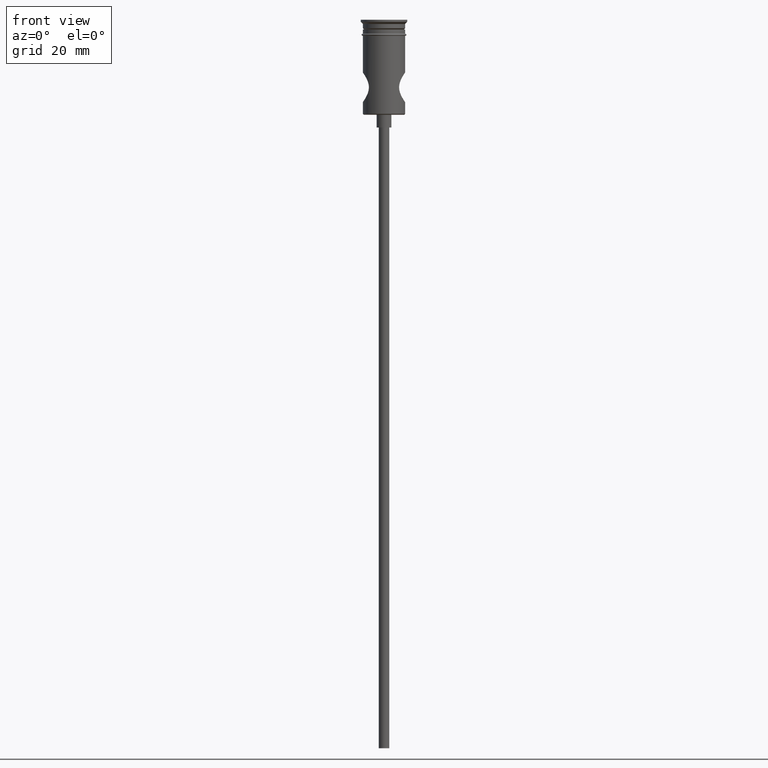
[diagram: clean part render]
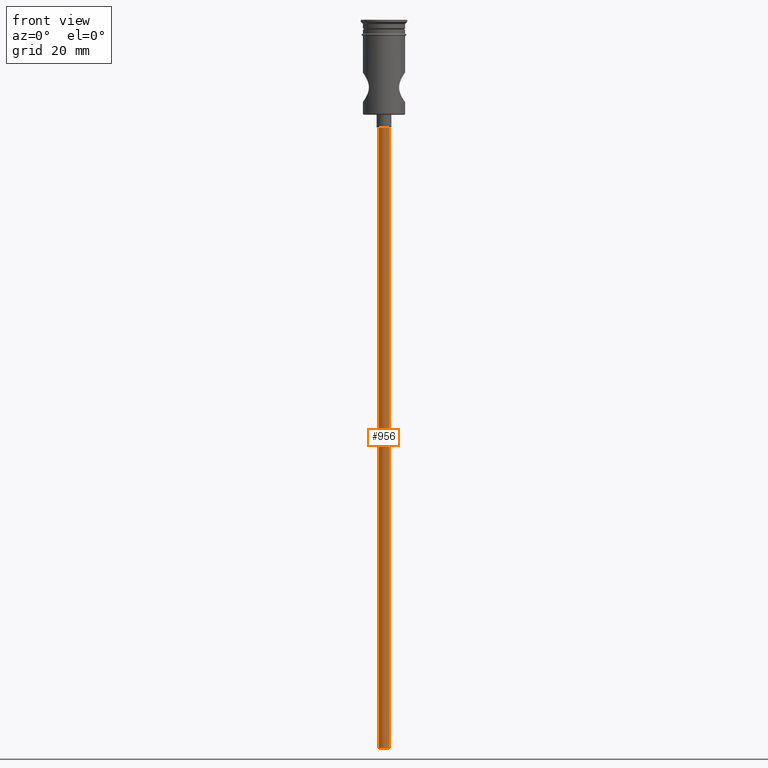
[diagram: same view with one face highlighted and labeled with its STEP entity id]
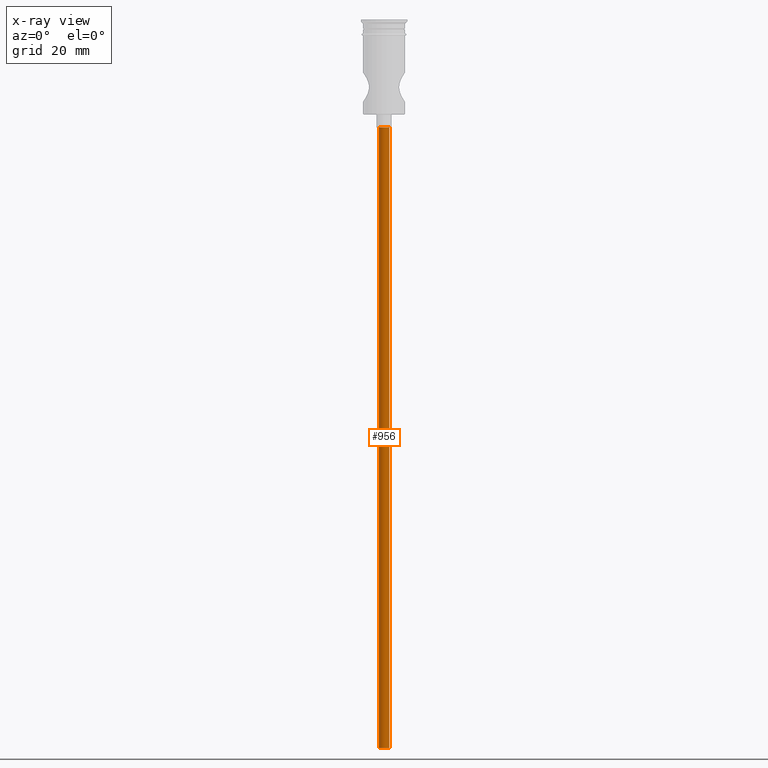
[diagram: x-ray of the same camera — body ghosted, the highlighted face saturated]
A machine part, front view. The second image highlights one B-rep face of the part: STEP entity #956.
The next image is the same camera in x-ray: the body ghosted, the highlighted face saturated — about 0% of this face is hidden behind the body in this view.
In plain terms, the highlighted cylindrical surface (edge-blend (fillet) strip) has radius 1.25 mm, axis along (-0, -0, 1).
Its self-contained STEP definition (entity closure, byte-faithful):
#17 = CARTESIAN_POINT ( 'NONE',  ( -1.250000000000000000, 1.530808498934191571E-16, -25.50000000000000000 ) ) ;
#44 = VERTEX_POINT ( 'NONE', #17 ) ;
#79 = VECTOR ( 'NONE', #1196, 1000.000000000000000 ) ;
#122 = FACE_OUTER_BOUND ( 'NONE', #423, .T. ) ;
#185 = ORIENTED_EDGE ( 'NONE', *, *, #644, .F. ) ;
#235 = LINE ( 'NONE', #337, #79 ) ;
#239 = VERTEX_POINT ( 'NONE', #1138 ) ;
#277 = DIRECTION ( 'NONE',  ( 0.000000000000000000, 0.000000000000000000, -1.000000000000000000 ) ) ;
#330 = CYLINDRICAL_SURFACE ( 'NONE', #584, 1.250000000000000000 ) ;
#337 = CARTESIAN_POINT ( 'NONE',  ( -1.250000000000000000, 1.530808498934191571E-16, -172.5000000000000000 ) ) ;
#413 = CARTESIAN_POINT ( 'NONE',  ( 1.250000000000000000, 0.000000000000000000, -172.5000000000000000 ) ) ;
#423 = EDGE_LOOP ( 'NONE', ( #1045, #185, #682, #430 ) ) ;
#427 = VERTEX_POINT ( 'NONE', #731 ) ;
#430 = ORIENTED_EDGE ( 'NONE', *, *, #1020, .T. ) ;
#452 = CIRCLE ( 'NONE', #626, 1.250000000000000000 ) ;
#524 = LINE ( 'NONE', #413, #1271 ) ;
#583 = VERTEX_POINT ( 'NONE', #912 ) ;
#584 = AXIS2_PLACEMENT_3D ( 'NONE', #1182, #1044, #1028 ) ;
#626 = AXIS2_PLACEMENT_3D ( 'NONE', #1035, #277, #703 ) ;
#644 = EDGE_CURVE ( 'NONE', #427, #583, #452, .T. ) ;
#680 = EDGE_CURVE ( 'NONE', #427, #239, #524, .T. ) ;
#682 = ORIENTED_EDGE ( 'NONE', *, *, #680, .T. ) ;
#703 = DIRECTION ( 'NONE',  ( -1.000000000000000000, 0.000000000000000000, 0.000000000000000000 ) ) ;
#731 = CARTESIAN_POINT ( 'NONE',  ( 1.250000000000000000, 0.000000000000000000, -172.5000000000000000 ) ) ;
#736 = DIRECTION ( 'NONE',  ( -0.000000000000000000, -0.000000000000000000, 1.000000000000000000 ) ) ;
#899 = EDGE_CURVE ( 'NONE', #583, #44, #235, .T. ) ;
#912 = CARTESIAN_POINT ( 'NONE',  ( -1.250000000000000000, 1.530808498934191571E-16, -172.5000000000000000 ) ) ;
#938 = AXIS2_PLACEMENT_3D ( 'NONE', #1183, #1169, #1307 ) ;
#956 = ADVANCED_FACE ( 'NONE', ( #122 ), #330, .T. ) ;
#1020 = EDGE_CURVE ( 'NONE', #239, #44, #1419, .T. ) ;
#1028 = DIRECTION ( 'NONE',  ( 1.000000000000000000, 0.000000000000000000, 0.000000000000000000 ) ) ;
#1035 = CARTESIAN_POINT ( 'NONE',  ( 0.000000000000000000, 0.000000000000000000, -172.5000000000000000 ) ) ;
#1044 = DIRECTION ( 'NONE',  ( -0.000000000000000000, -0.000000000000000000, 1.000000000000000000 ) ) ;
#1045 = ORIENTED_EDGE ( 'NONE', *, *, #899, .F. ) ;
#1138 = CARTESIAN_POINT ( 'NONE',  ( 1.250000000000000000, 0.000000000000000000, -25.50000000000000000 ) ) ;
#1169 = DIRECTION ( 'NONE',  ( 0.000000000000000000, 0.000000000000000000, -1.000000000000000000 ) ) ;
#1182 = CARTESIAN_POINT ( 'NONE',  ( 0.000000000000000000, 0.000000000000000000, -172.5000000000000000 ) ) ;
#1183 = CARTESIAN_POINT ( 'NONE',  ( 0.000000000000000000, 0.000000000000000000, -25.50000000000000000 ) ) ;
#1196 = DIRECTION ( 'NONE',  ( -0.000000000000000000, -0.000000000000000000, 1.000000000000000000 ) ) ;
#1271 = VECTOR ( 'NONE', #736, 1000.000000000000000 ) ;
#1307 = DIRECTION ( 'NONE',  ( -1.000000000000000000, 0.000000000000000000, 0.000000000000000000 ) ) ;
#1419 = CIRCLE ( 'NONE', #938, 1.250000000000000000 ) ;